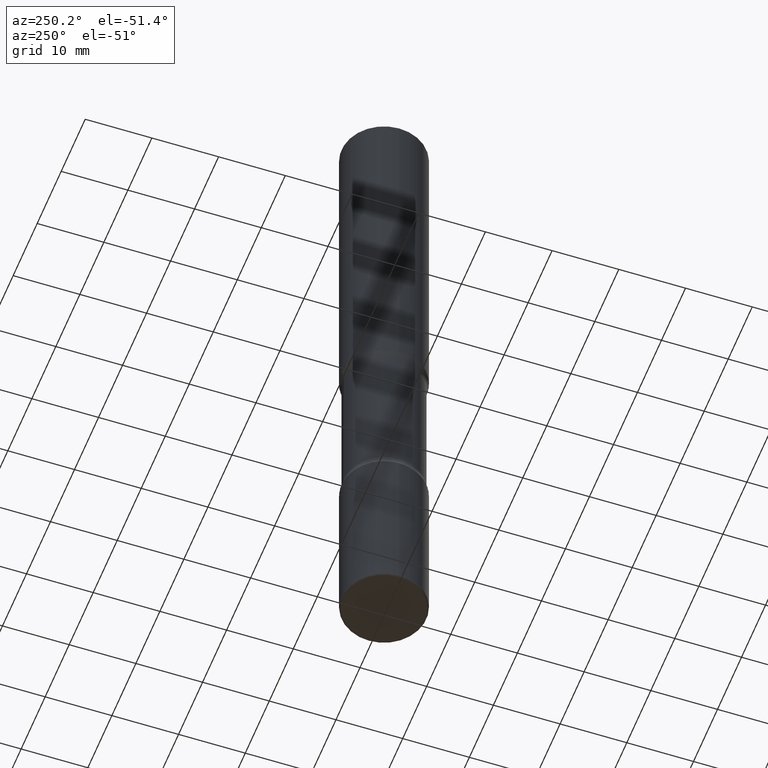
[diagram: clean part render]
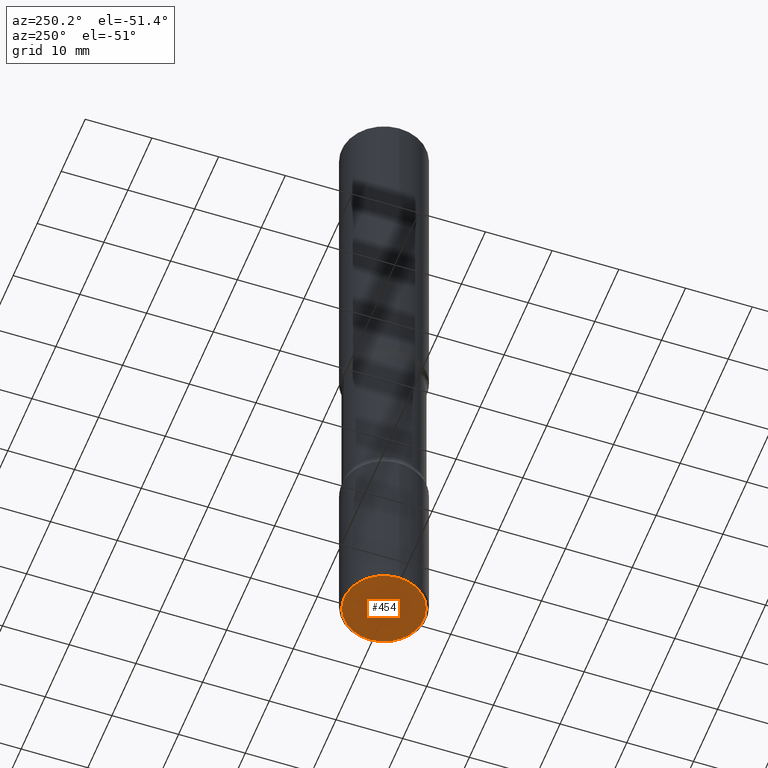
[diagram: same view with one face highlighted and labeled with its STEP entity id]
A machine part, auxiliary view. The second image highlights one B-rep face of the part: STEP entity #454.
In plain terms, the highlighted planar face has unit normal (0, -0, -1).
Its self-contained STEP definition (entity closure, byte-faithful):
#5 = AXIS2_PLACEMENT_3D ( 'NONE', #339, #54, #244 ) ;
#8 = ORIENTED_EDGE ( 'NONE', *, *, #192, .F. ) ;
#36 = AXIS2_PLACEMENT_3D ( 'NONE', #372, #94, #194 ) ;
#54 = DIRECTION ( 'NONE',  ( -2.445468806185136597E-29, 3.491481338843145583E-15, 1.000000000000000000 ) ) ;
#56 = DIRECTION ( 'NONE',  ( -2.445468806185136597E-29, 3.491481338843145583E-15, 1.000000000000000000 ) ) ;
#88 = FACE_OUTER_BOUND ( 'NONE', #495, .T. ) ;
#94 = DIRECTION ( 'NONE',  ( 2.438088387897960049E-29, -3.491481338843145188E-15, -1.000000000000000000 ) ) ;
#114 = EDGE_CURVE ( 'NONE', #494, #151, #555, .T. ) ;
#151 = VERTEX_POINT ( 'NONE', #281 ) ;
#162 = ORIENTED_EDGE ( 'NONE', *, *, #114, .F. ) ;
#189 = PLANE ( 'NONE',  #36 ) ;
#192 = EDGE_CURVE ( 'NONE', #151, #494, #270, .T. ) ;
#194 = DIRECTION ( 'NONE',  ( -1.000000000000000000, 6.982962677686265922E-15, -4.876176775795935793E-29 ) ) ;
#244 = DIRECTION ( 'NONE',  ( 1.000000000000000000, -6.982962677686268288E-15, 0.000000000000000000 ) ) ;
#245 = DIRECTION ( 'NONE',  ( 1.000000000000000000, -6.982962677686268288E-15, 0.000000000000000000 ) ) ;
#270 = CIRCLE ( 'NONE', #5, 0.2350000000000003753 ) ;
#281 = CARTESIAN_POINT ( 'NONE',  ( 0.2350000000000003753, -1.560692158462886037E-14, -4.000000000000000888 ) ) ;
#285 = CARTESIAN_POINT ( 'NONE',  ( 9.781875224740547508E-29, -1.396592535537258391E-14, -4.000000000000000888 ) ) ;
#320 = CARTESIAN_POINT ( 'NONE',  ( -0.2350000000000003753, -1.221667311111301332E-14, -4.000000000000000888 ) ) ;
#339 = CARTESIAN_POINT ( 'NONE',  ( 9.781875224740547508E-29, -1.396592535537258391E-14, -4.000000000000000888 ) ) ;
#372 = CARTESIAN_POINT ( 'NONE',  ( 3.287784133380669782E-29, -2.326583341891048903E-14, -4.000000000000000000 ) ) ;
#398 = AXIS2_PLACEMENT_3D ( 'NONE', #285, #56, #245 ) ;
#454 = ADVANCED_FACE ( 'NONE', ( #88 ), #189, .T. ) ;
#494 = VERTEX_POINT ( 'NONE', #320 ) ;
#495 = EDGE_LOOP ( 'NONE', ( #8, #162 ) ) ;
#555 = CIRCLE ( 'NONE', #398, 0.2350000000000003753 ) ;